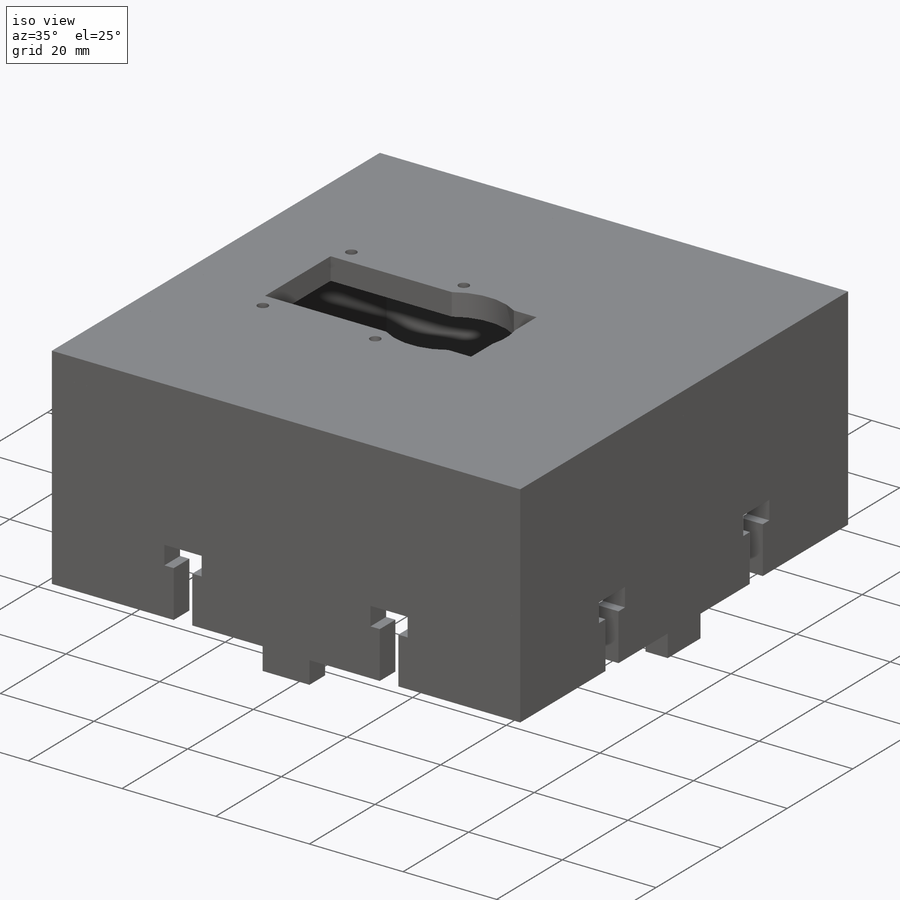
[diagram: iso view]
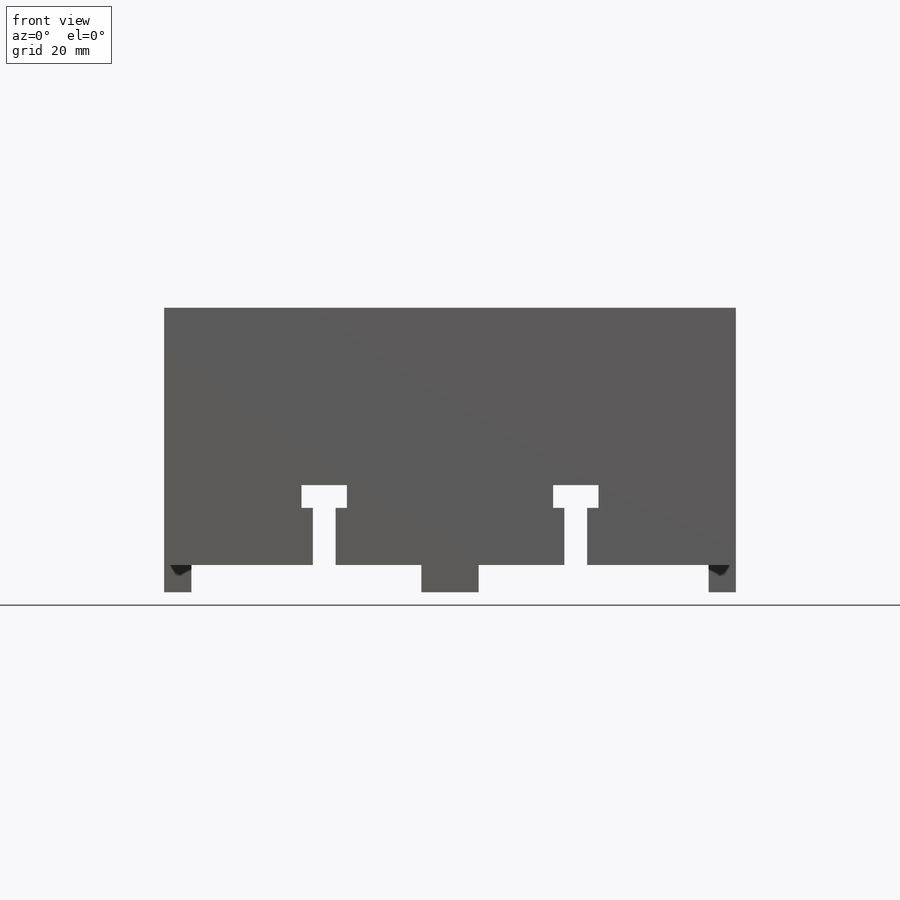
[diagram: front view]
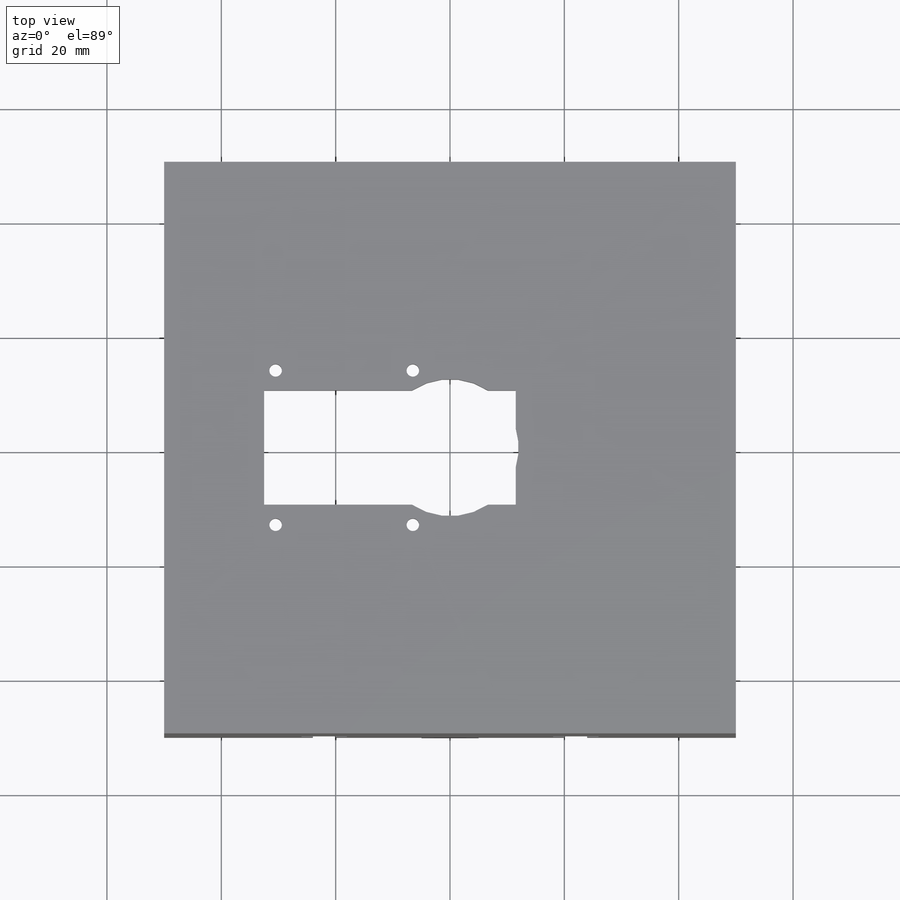
[diagram: top view]
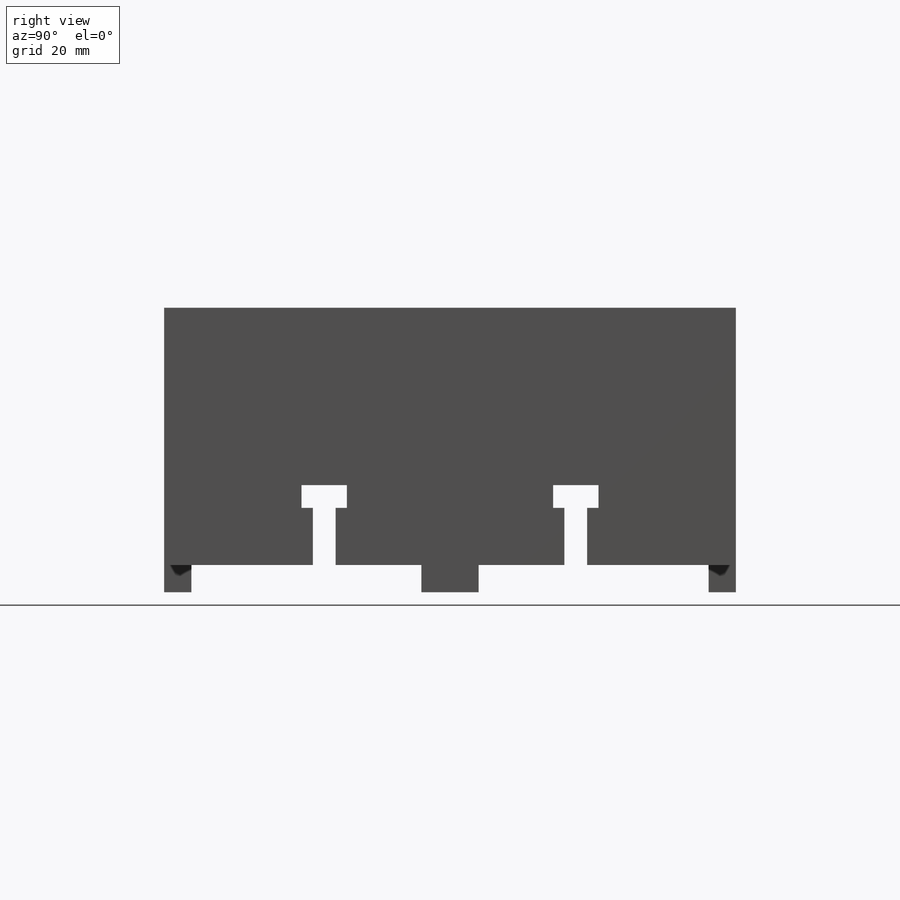
[diagram: right view]
SOLIDWORKS PART (.sldprt)
format: sldprt  version: not decoded by parser v0  size: 846,336 bytes
history: native  units: mm
features: sketch x10, cut_extrude x5, extrude x4, pattern_circular x3, material x1, shell x1, mirror x1, delete_body x1, boolean_combine x1 (+11 scaffold rows collapsed)
feature tree (38):
  scaffold x11  (default folders/planes/origin — collapsed)
  material  "Material <not specified>"
  sketch  "Sketch1"  dims[D1=100.0mm D2=100.0mm]
  extrude  "Boss-Extrude1"  Depth=45mm
  shell  "Shell1"  Thickness=4.7625mm
  sketch  "Sketch2"  dims[c1.D1=29.9999mm c1.D2=60.4999mm c1.D3=20.0mm c1.D4=44.0mm c2.D1=11.5mm]
  cut_extrude  "Cut-Extrude1"  [1 undecoded]
  sketch  "Sketch3"  dims[D1=~6.337606mm]
  cut_extrude  "Cut-Extrude2"  [1 undecoded]
  sketch  "Sketch4"  dims[D1=10.0mm D2=7.9375mm D3=~3.96875mm D4=~3.96875mm D5=22.0mm]
  cut_extrude  "Cut-Extrude3"  [1 undecoded]
  pattern_circular  "CirPattern1"  Count=4 Angle=360deg
  sketch  "Sketch5"  dims[D2=2.2mm D1=3.5mm D3=2.0mm D4=8.0mm]
  cut_extrude  "Cut-Extrude4"  [1 undecoded]
  mirror  "Mirror1"
  sketch  "Sketch7"  dims[D1=4.7625mm D2=~8.532069mm]
  extrude  "Boss-Extrude2"  Depth=4.7625mm
  pattern_circular  "CirPattern3"  Count=2 Angle=360deg
  sketch  "Sketch8"  dims[D1=4.7625mm]
  extrude  "Boss-Extrude3"  Depth=4.7625mm
  sketch  "Sketch10"  dims[D1=4.7625mm D2=10.0mm D3=10.0mm D4=~10.059375mm]
  extrude  "Boss-Extrude4"  Depth=4.7625mm
  delete_body  "Body-Delete2"
  pattern_circular  "CirPattern6"  Count=4 Angle=90deg
  boolean_combine  "Combine2"
  sketch  "Sketch11"  dims[D1=0.0mm]
  cut_extrude  "Cut-Extrude5"  Depth=4.7625mm
  sketch  "Sketch12"  dims[D1=0.0mm]
decode coverage: 19 of 26 modeling features carry decoded parameters
note: ~ marks probable driven/reference dimensions
note: 4 parameter values undecoded
summary: no parameter record found for 4 features
note: suppression state not decoded; provenance and decode notes live in map.json
